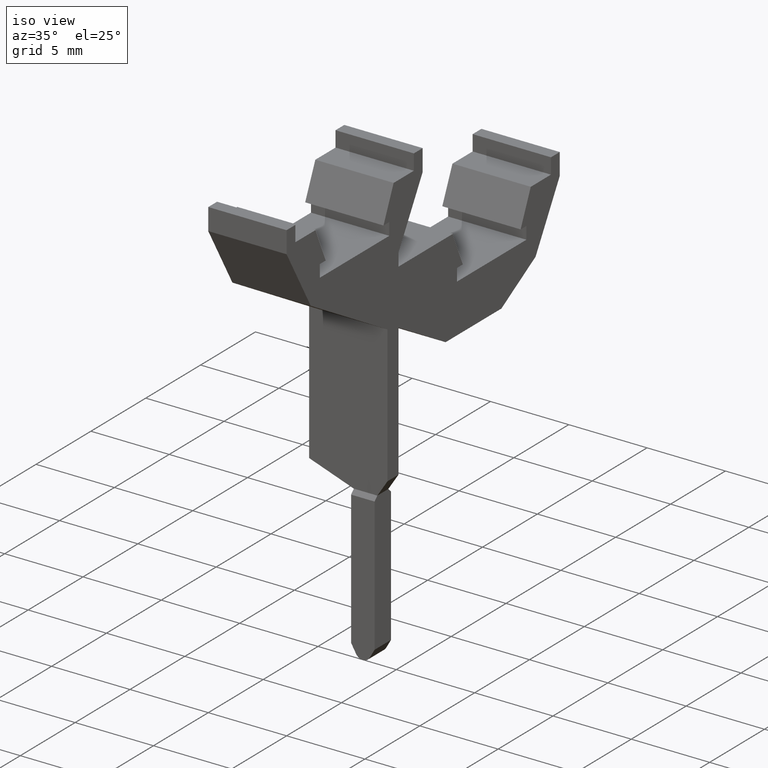
[diagram: clean part render]
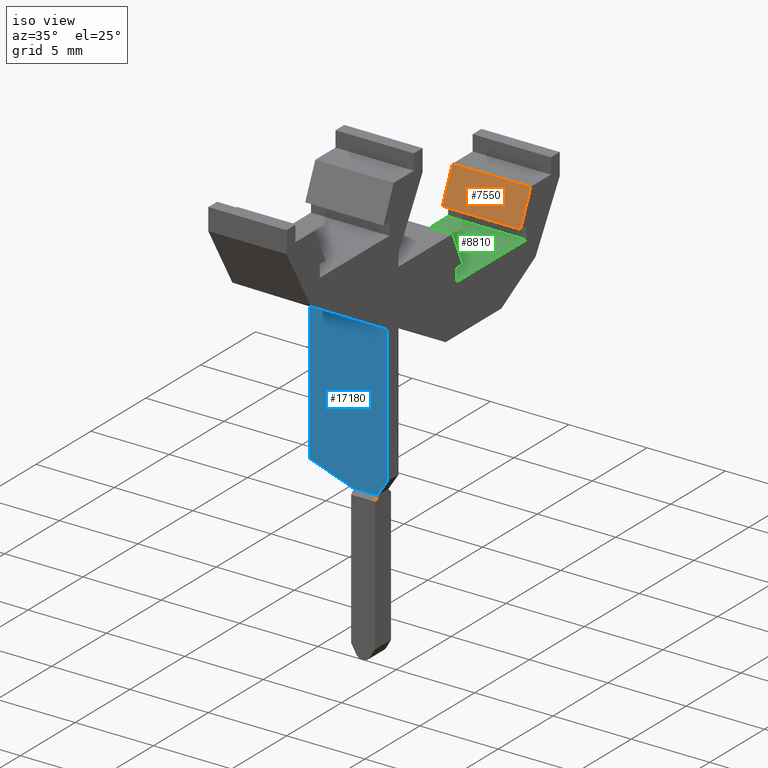
[diagram: same view with three faces highlighted in distinct colors, each labeled with its STEP entity id]
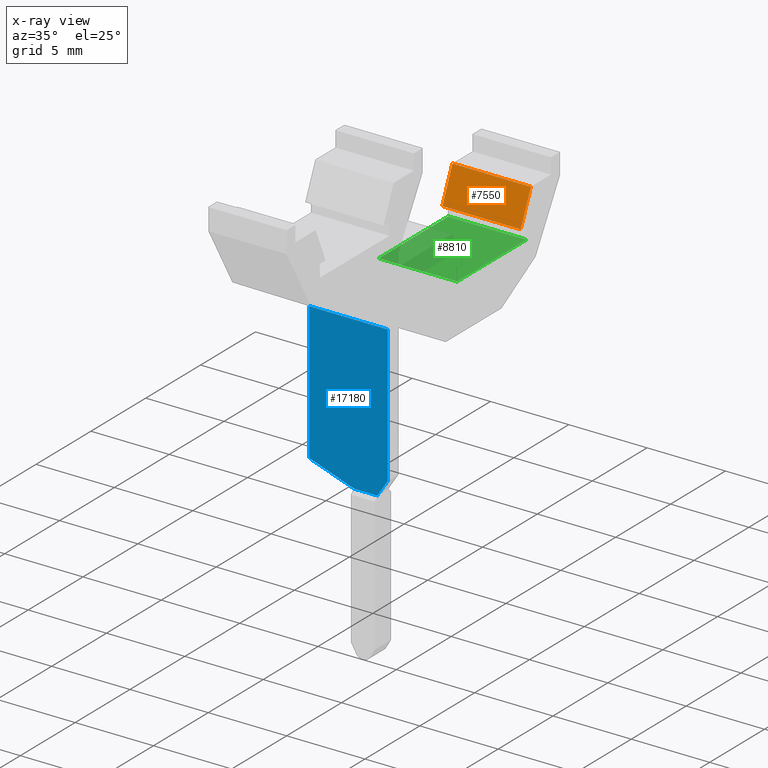
[diagram: x-ray of the same camera — body ghosted, the three highlighted faces saturated]
A machine part, iso view with three faces highlighted in distinct colors.
The next image is the same camera in x-ray (body ghosted, the three faces saturated) — at least one of them is partly hidden behind the body in this view.
Their STEP definitions:

[orange] entity #7550 — the highlighted planar face has unit normal (0, -0.9155, 0.4023).
#2600=CARTESIAN_POINT('',(47.9621543749761,10.8499999999999,0.));
#2610=VERTEX_POINT('',#2600);
#2640=CARTESIAN_POINT('',(43.1940672793115,0.,0.));
#2650=DIRECTION('',(0.402320578212197,0.915498854366844,0.));
#2660=VECTOR('',#2650,1.);
#2670=LINE('',#2640,#2660);
#2680=CARTESIAN_POINT('',(47.037101532914,8.74499999999999,0.));
#2690=VERTEX_POINT('',#2680);
#2700=EDGE_CURVE('',#2690,#2610,#2670,.T.);
#3630=CARTESIAN_POINT('',(47.037101532914,8.74499999999999,5.));
#3640=VERTEX_POINT('',#3630);
#3670=CARTESIAN_POINT('',(43.1940672793115,0.,5.));
#3680=DIRECTION('',(-0.402320578212197,-0.915498854366844,0.));
#3690=VECTOR('',#3680,1.);
#3700=LINE('',#3670,#3690);
#3710=CARTESIAN_POINT('',(47.9621543749761,10.8499999999999,5.));
#3720=VERTEX_POINT('',#3710);
#3730=EDGE_CURVE('',#3720,#3640,#3700,.T.);
#6760=CARTESIAN_POINT('',(47.9621543749761,10.8499999999999,0.));
#6770=DIRECTION('',(0.,0.,-1.));
#6780=VECTOR('',#6770,1.);
#6790=LINE('',#6760,#6780);
#6800=EDGE_CURVE('',#3720,#2610,#6790,.T.);
#7390=CARTESIAN_POINT('',(47.1418651947576,8.98339449829609,
6.12323399573677E-17));
#7400=DIRECTION('',(-0.915498854366844,0.402320578212197,0.));
#7410=DIRECTION('',(0.402320578212197,0.915498854366844,0.));
#7420=AXIS2_PLACEMENT_3D('',#7390,#7400,#7410);
#7430=PLANE('',#7420);
#7440=ORIENTED_EDGE('',*,*,#2700,.F.);
#7450=ORIENTED_EDGE('',*,*,#6800,.T.);
#7460=ORIENTED_EDGE('',*,*,#3730,.F.);
#7470=CARTESIAN_POINT('',(47.037101532914,8.74499999999999,0.));
#7480=DIRECTION('',(0.,0.,-1.));
#7490=VECTOR('',#7480,1.);
#7500=LINE('',#7470,#7490);
#7510=EDGE_CURVE('',#3640,#2690,#7500,.T.);
#7520=ORIENTED_EDGE('',*,*,#7510,.F.);
#7530=EDGE_LOOP('',(#7520,#7460,#7450,#7440));
#7540=FACE_OUTER_BOUND('',#7530,.T.);
#7550=ADVANCED_FACE('',(#7540),#7430,.T.);

[blue] entity #17180 — the highlighted planar face has unit normal (0, -1, 0).
#1720=CARTESIAN_POINT('',(34.9025,7.6085481156726,0.));
#1730=VERTEX_POINT('',#1720);
#1760=CARTESIAN_POINT('',(34.9025,0.,0.));
#1770=DIRECTION('',(0.,-1.,0.));
#1780=VECTOR('',#1770,1.);
#1790=LINE('',#1760,#1780);
#1800=CARTESIAN_POINT('',(34.9025,-1.15000000000003,0.));
#1810=VERTEX_POINT('',#1800);
#1820=EDGE_CURVE('',#1730,#1810,#1790,.T.);
#4510=CARTESIAN_POINT('',(34.9025,-1.14999999999996,5.));
#4520=VERTEX_POINT('',#4510);
#4550=CARTESIAN_POINT('',(34.9025,0.,5.));
#4560=DIRECTION('',(0.,-1.,0.));
#4570=VECTOR('',#4560,1.);
#4580=LINE('',#4550,#4570);
#4590=CARTESIAN_POINT('',(34.9025,7.6085481156726,5.));
#4600=VERTEX_POINT('',#4590);
#4610=EDGE_CURVE('',#4600,#4520,#4580,.T.);
#7010=CARTESIAN_POINT('',(34.9025,-2.15000000000002,2.85));
#7020=VERTEX_POINT('',#7010);
#7070=CARTESIAN_POINT('',(34.9025,-2.15000000000002,0.));
#7080=DIRECTION('',(0.,1.83697019872103E-16,1.));
#7090=VECTOR('',#7080,1.);
#7100=LINE('',#7070,#7090);
#7110=CARTESIAN_POINT('',(34.9025,-2.15000000000002,4.35));
#7120=VERTEX_POINT('',#7110);
#7130=EDGE_CURVE('',#7020,#7120,#7100,.T.);
#9010=CARTESIAN_POINT('',(34.9025,7.60854811567262,0.));
#9020=DIRECTION('',(0.,0.,-1.));
#9030=VECTOR('',#9020,1.);
#9040=LINE('',#9010,#9030);
#9050=EDGE_CURVE('',#4600,#1730,#9040,.T.);
#16950=CARTESIAN_POINT('',(34.9025,-2.15000000000001,0.));
#16960=DIRECTION('',(-1.,0.,0.));
#16970=DIRECTION('',(0.,1.,0.));
#16980=AXIS2_PLACEMENT_3D('',#16950,#16960,#16970);
#16990=PLANE('',#16980);
#17000=ORIENTED_EDGE('',*,*,#9050,.T.);
#17010=ORIENTED_EDGE('',*,*,#4610,.F.);
#17020=CARTESIAN_POINT('',(34.9025,0.,5.74749999999992));
#17030=DIRECTION('',(0.,0.838443616300653,0.544988350595391));
#17040=VECTOR('',#17030,1.);
#17050=LINE('',#17020,#17040);
#17060=EDGE_CURVE('',#7120,#4520,#17050,.T.);
#17070=ORIENTED_EDGE('',*,*,#17060,.T.);
#17080=ORIENTED_EDGE('',*,*,#7130,.T.);
#17090=CARTESIAN_POINT('',(34.9025,-1.15000000000003,0.));
#17100=DIRECTION('',(0.,-0.331087713029081,0.943599982132881));
#17110=VECTOR('',#17100,1.);
#17120=LINE('',#17090,#17110);
#17130=EDGE_CURVE('',#1810,#7020,#17120,.T.);
#17140=ORIENTED_EDGE('',*,*,#17130,.T.);
#17150=ORIENTED_EDGE('',*,*,#1820,.T.);
#17160=EDGE_LOOP('',(#17150,#17140,#17080,#17070,#17010,#17000));
#17170=FACE_OUTER_BOUND('',#17160,.T.);
#17180=ADVANCED_FACE('',(#17170),#16990,.T.);

[green] entity #8810 — the highlighted planar face has unit normal (0, 0, 1).
#2840=CARTESIAN_POINT('',(47.565,7.94999999999993,0.));
#2850=VERTEX_POINT('',#2840);
#2880=CARTESIAN_POINT('',(0.,7.94999999999993,0.));
#2890=DIRECTION('',(1.,0.,0.));
#2900=VECTOR('',#2890,1.);
#2910=LINE('',#2880,#2900);
#2920=CARTESIAN_POINT('',(41.24,7.94999999999993,0.));
#2930=VERTEX_POINT('',#2920);
#2940=EDGE_CURVE('',#2930,#2850,#2910,.T.);
#3390=CARTESIAN_POINT('',(41.24,7.94999999999993,5.));
#3400=VERTEX_POINT('',#3390);
#3430=CARTESIAN_POINT('',(0.,7.94999999999993,5.));
#3440=DIRECTION('',(-1.,0.,0.));
#3450=VECTOR('',#3440,1.);
#3460=LINE('',#3430,#3450);
#3470=CARTESIAN_POINT('',(47.565,7.94999999999993,5.));
#3480=VERTEX_POINT('',#3470);
#3490=EDGE_CURVE('',#3480,#3400,#3460,.T.);
#8480=CARTESIAN_POINT('',(47.565,7.94999999999993,0.));
#8490=DIRECTION('',(0.,0.,1.));
#8500=VECTOR('',#8490,1.);
#8510=LINE('',#8480,#8500);
#8520=EDGE_CURVE('',#2850,#3480,#8510,.T.);
#8650=CARTESIAN_POINT('',(45.6025,7.94999999999993,6.12323399573677E-17)
);
#8660=DIRECTION('',(-0.,1.,0.));
#8670=DIRECTION('',(1.,0.,0.));
#8680=AXIS2_PLACEMENT_3D('',#8650,#8660,#8670);
#8690=PLANE('',#8680);
#8700=ORIENTED_EDGE('',*,*,#8520,.F.);
#8710=ORIENTED_EDGE('',*,*,#3490,.F.);
#8720=CARTESIAN_POINT('',(41.24,7.94999999999993,0.));
#8730=DIRECTION('',(0.,0.,-1.));
#8740=VECTOR('',#8730,1.);
#8750=LINE('',#8720,#8740);
#8760=EDGE_CURVE('',#3400,#2930,#8750,.T.);
#8770=ORIENTED_EDGE('',*,*,#8760,.F.);
#8780=ORIENTED_EDGE('',*,*,#2940,.F.);
#8790=EDGE_LOOP('',(#8780,#8770,#8710,#8700));
#8800=FACE_OUTER_BOUND('',#8790,.T.);
#8810=ADVANCED_FACE('',(#8800),#8690,.T.);